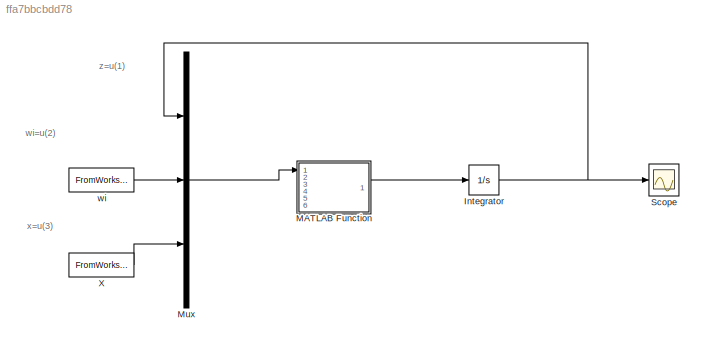
MODEL slx_ffa7bbcbdd78
KIND model
CONFIG AbsTol = auto
CONFIG FixedStep = auto
CONFIG MaxStep = auto
CONFIG MinStep = auto
CONFIG RelTol = 1e-3
CONFIG SampleTimeConstraint = Unconstrained
CONFIG Solver = ode45
CONFIG SolverMode = Auto
CONFIG SolverName = ode45
CONFIG StartTime = 0.0
CONFIG StopTime = 10.0
BLOCK [Integrator] Integrator
  Ports = [1, 1]
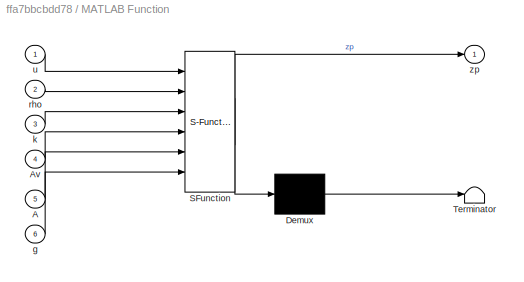
BLOCK [SubSystem] MATLAB Function
  ErrorFcn = Stateflow.Translate.translate
  PermitHierarchicalResolution = ExplicitOnly
  Ports = [6, 1]
  RequestExecContextInheritance = off
  SFBlockType = MATLAB Function
  TreatAsAtomicUnit = on
BLOCK [Demux] MATLAB Function/ Demux 
  Outputs = 1
  Ports = [1, 1]
BLOCK [S-Function] MATLAB Function/ SFunction 
  FunctionName = sf_sfun
  PortCounts = [6 2]
  Ports = [6, 2]
  Tag = Stateflow S-Function Modello_SIM 2
BLOCK [Terminator] MATLAB Function/ Terminator 
BLOCK [Inport] MATLAB Function/A
  IconDisplay = Port number
  Port = 5
BLOCK [Inport] MATLAB Function/Av
  IconDisplay = Port number
  Port = 4
BLOCK [Inport] MATLAB Function/g
  IconDisplay = Port number
  Port = 6
BLOCK [Inport] MATLAB Function/k
  IconDisplay = Port number
  Port = 3
BLOCK [Inport] MATLAB Function/rho
  IconDisplay = Port number
  Port = 2
BLOCK [Inport] MATLAB Function/u
  IconDisplay = Port number
BLOCK [Outport] MATLAB Function/zp
  IconDisplay = Port number
BLOCK [Mux] Mux
  DisplayOption = bar
  Inputs = 3
  Ports = [3, 1]
BLOCK [Scope] Scope
  Floating = off
  NumInputPorts = 1
  Ports = [1]
BLOCK [FromWorkspace] X 
  SampleTime = 0
  VariableName = 1
  ZeroCross = on
BLOCK [FromWorkspace] wi 
  SampleTime = 0
  VariableName = 1
  ZeroCross = on
ANNOTATION (root): wi=u(2)
ANNOTATION (root): x=u(3)
ANNOTATION (root): z=u(1)
NET Integrator:1 -> Mux:1, Scope:1
LINE MATLAB Function:1 -> Integrator:1
LINE Mux:1 -> MATLAB Function:1
LINE X :1 -> Mux:3
LINE wi :1 -> Mux:2
note: NET lines group one-source signal fan-out (src -> all destinations, sorted); 1:1 wires keep LINE
CHART MATLAB Function states=1 transitions=1
  STATE_LABEL 'eML_blk_kernel()'
  STATE_LABEL 'SCRIPT:\n% function that return the derivative of the liquid livel in the tank\nfunction zp  = model(u,rho,k,Av,A,g)\nz = u(1);\nmodel.m\n% first input: tank level\nwi = u(2); % second input: input flow rate\nx = min(1,max(0,u(3))); % third input: stem position 0<=x<=1\nzp = (wi/(rho*A))-k*(Av/A)*x*sqrt(g)*sqrt(z); %  z_point expression'
